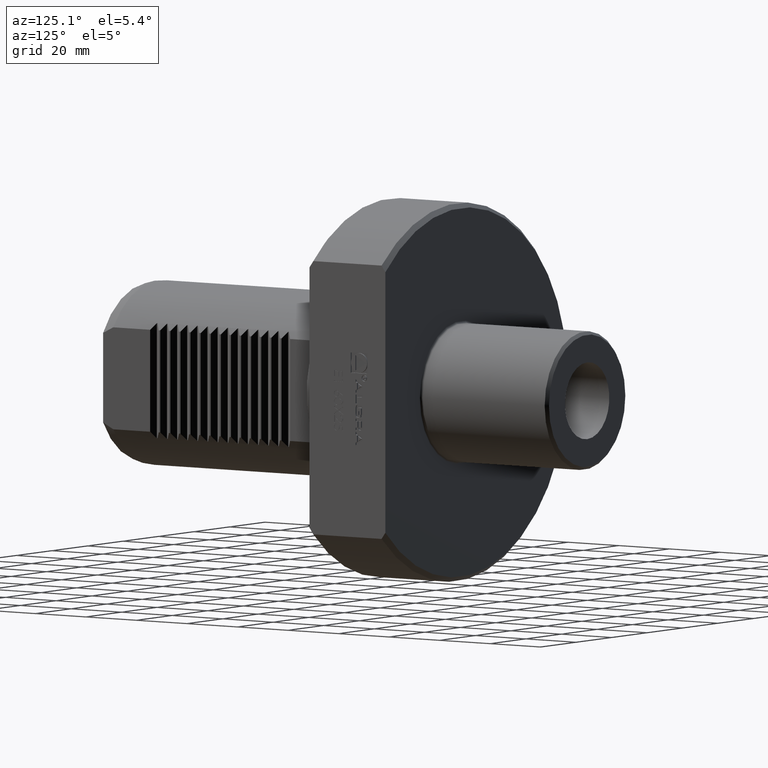
[diagram: clean part render]
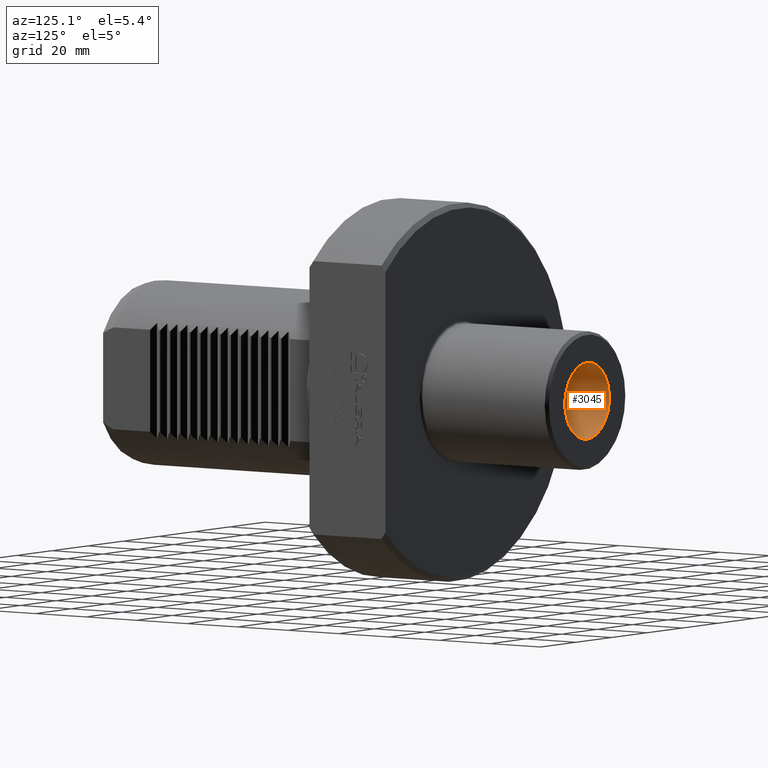
[diagram: same view with one face highlighted and labeled with its STEP entity id]
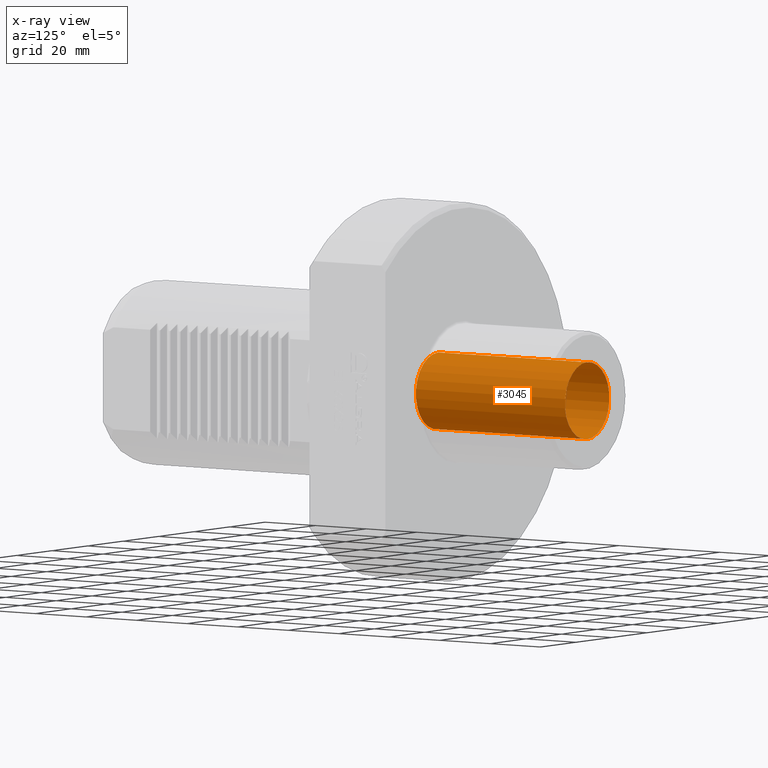
[diagram: x-ray of the same camera — body ghosted, the highlighted face saturated]
A machine part, auxiliary view. The second image highlights one B-rep face of the part: STEP entity #3045.
The next image is the same camera in x-ray: the body ghosted, the highlighted face saturated — about 0% of this face is hidden behind the body in this view.
In plain terms, the highlighted cylindrical surface (bore or boss wall) has radius 12.5 mm, axis along (-0, 1, -0).
Its self-contained STEP definition (entity closure, byte-faithful):
#2 = DIRECTION ( 'NONE',  ( 0.000000000000000000, 0.000000000000000000, 1.000000000000000000 ) ) ;
#120 = VERTEX_POINT ( 'NONE', #7758 ) ;
#439 = DIRECTION ( 'NONE',  ( -0.000000000000000000, 1.000000000000000000, -0.000000000000000000 ) ) ;
#582 = DIRECTION ( 'NONE',  ( 0.000000000000000000, 0.000000000000000000, 1.000000000000000000 ) ) ;
#746 = CIRCLE ( 'NONE', #13037, 12.50000000000000711 ) ;
#779 = VERTEX_POINT ( 'NONE', #7096 ) ;
#920 = FACE_OUTER_BOUND ( 'NONE', #5116, .T. ) ;
#1231 = EDGE_LOOP ( 'NONE', ( #3959 ) ) ;
#1678 = CARTESIAN_POINT ( 'NONE',  ( -1.036296940540535988E-14, 79.99999999999998579, 0.000000000000000000 ) ) ;
#2742 = DIRECTION ( 'NONE',  ( -0.000000000000000000, 1.000000000000000000, -0.000000000000000000 ) ) ;
#3031 = CYLINDRICAL_SURFACE ( 'NONE', #10738, 12.50000000000001066 ) ;
#3045 = ADVANCED_FACE ( 'NONE', ( #920, #13823 ), #3031, .F. ) ;
#3175 = DIRECTION ( 'NONE',  ( -0.000000000000000000, 1.000000000000000000, -0.000000000000000000 ) ) ;
#3234 = EDGE_CURVE ( 'NONE', #120, #120, #746, .T. ) ;
#3660 = ORIENTED_EDGE ( 'NONE', *, *, #3234, .F. ) ;
#3959 = ORIENTED_EDGE ( 'NONE', *, *, #12166, .T. ) ;
#5116 = EDGE_LOOP ( 'NONE', ( #3660 ) ) ;
#7026 = CARTESIAN_POINT ( 'NONE',  ( -1.036296940540535988E-14, 20.99999999999998934, 0.000000000000000000 ) ) ;
#7096 = CARTESIAN_POINT ( 'NONE',  ( -1.036296940540535988E-14, 79.99999999999998579, 12.50000000000001421 ) ) ;
#7758 = CARTESIAN_POINT ( 'NONE',  ( -1.036296940540535988E-14, 20.99999999999998934, 12.50000000000000711 ) ) ;
#9155 = CIRCLE ( 'NONE', #13243, 12.50000000000001421 ) ;
#10738 = AXIS2_PLACEMENT_3D ( 'NONE', #10897, #3175, #2 ) ;
#10897 = CARTESIAN_POINT ( 'NONE',  ( -1.036296940540535988E-14, 79.99999999999998579, 0.000000000000000000 ) ) ;
#12166 = EDGE_CURVE ( 'NONE', #779, #779, #9155, .T. ) ;
#13037 = AXIS2_PLACEMENT_3D ( 'NONE', #7026, #2742, #582 ) ;
#13243 = AXIS2_PLACEMENT_3D ( 'NONE', #1678, #439, #13529 ) ;
#13529 = DIRECTION ( 'NONE',  ( 0.000000000000000000, 0.000000000000000000, 1.000000000000000000 ) ) ;
#13823 = FACE_OUTER_BOUND ( 'NONE', #1231, .T. ) ;